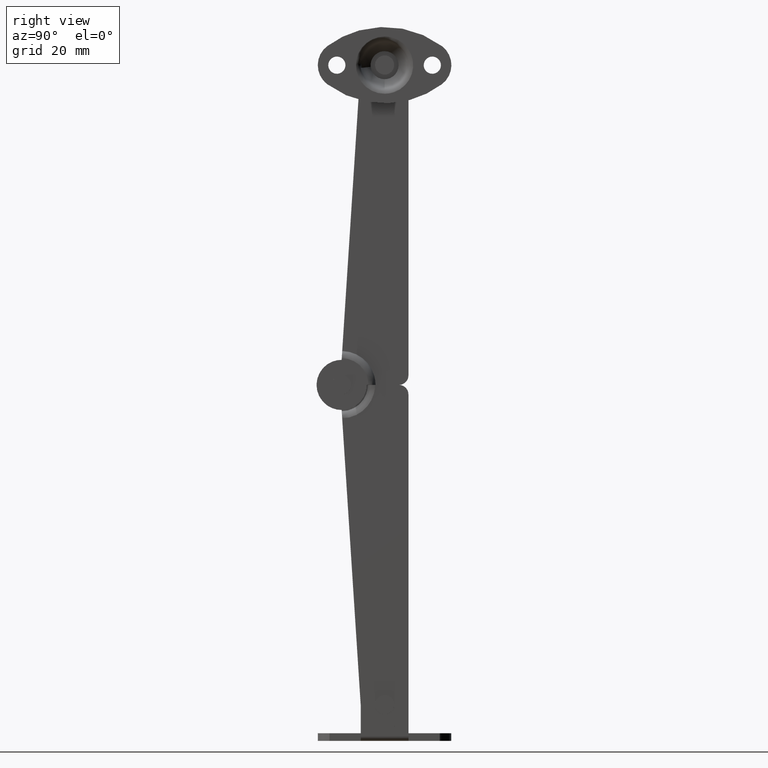
[diagram: clean part render]
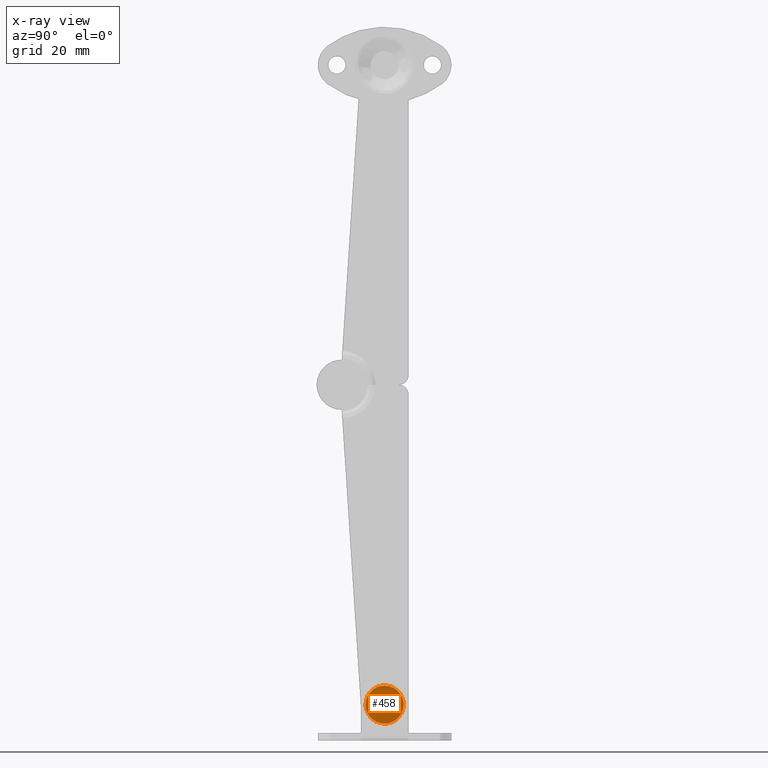
[diagram: x-ray — body ghosted, one internal face saturated and labeled with its STEP entity id]
A machine part, right view, then the same camera in x-ray: the body is ghosted and one INTERNAL B-rep face — a face not visible from any outside direction — is saturated and labeled: STEP entity #458.
In plain terms, the highlighted face is a freeform B-spline surface patch.
Its self-contained STEP definition (entity closure, byte-faithful):
#70=CARTESIAN_POINT('',(3.599991000006590,0.763555934445618,0.645741764109939));
#71=VERTEX_POINT('',#70);
#72=CARTESIAN_POINT('',(3.599991000000080,0.0,1.0));
#73=VERTEX_POINT('',#72);
#74=CARTESIAN_POINT('',(3.599991000006590,0.763555934445618,0.645741764109939));
#75=CARTESIAN_POINT('',(3.599991000005688,0.658586004059867,0.770410969948342));
#76=CARTESIAN_POINT('',(3.599991000003634,0.416233844426429,0.944200817206888));
#77=CARTESIAN_POINT('',(3.599991000001157,0.126715662868271,1.000114263729028));
#78=CARTESIAN_POINT('',(3.599991000000080,0.0,1.0));
#79=B_SPLINE_CURVE_WITH_KNOTS('',3,(#74,#75,#76,#77,#78),.UNSPECIFIED.,.F.,.U.,(4,1,4),(0.000000116544619,0.488706179782846,0.868828716494332),.UNSPECIFIED.);
#80=EDGE_CURVE('',#71,#73,#79,.T.);
#82=CARTESIAN_POINT('',(3.599991000000080,-0.999999999999983,-0.000000184446377));
#83=VERTEX_POINT('',#82);
#84=CARTESIAN_POINT('',(3.599991000000080,0.0,1.0));
#85=CARTESIAN_POINT('',(3.599991000000077,-0.163694700329356,1.000313599856675));
#86=CARTESIAN_POINT('',(3.599991000000080,-0.408789861768367,0.938399793159588));
#87=CARTESIAN_POINT('',(3.599991000000080,-0.718842733107815,0.719983333248641));
#88=CARTESIAN_POINT('',(3.599991000000068,-0.937445916014810,0.425287071422506));
#89=CARTESIAN_POINT('',(3.599991000000090,-1.000206682629834,0.147294423148819));
#90=CARTESIAN_POINT('',(3.599991000000080,-0.999999999999983,-0.000000184446377));
#91=B_SPLINE_CURVE_WITH_KNOTS('',3,(#84,#85,#86,#87,#88,#89,#90),.UNSPECIFIED.,.F.,.U.,(4,1,1,1,4),(0.000000231877339,0.490926261532044,0.736389906305647,1.129122870276101,1.570953987262256),.UNSPECIFIED.);
#92=EDGE_CURVE('',#73,#83,#91,.T.);
#94=CARTESIAN_POINT('',(3.599991000000080,0.0,-1.0));
#95=VERTEX_POINT('',#94);
#96=CARTESIAN_POINT('',(3.599991000000080,-0.999999999999983,-0.000000184446377));
#97=CARTESIAN_POINT('',(3.599991000000082,-1.000316032661211,-0.163702852029814));
#98=CARTESIAN_POINT('',(3.599991000000076,-0.938396942270719,-0.408781568956172));
#99=CARTESIAN_POINT('',(3.599991000000085,-0.719988077439083,-0.718856223689221));
#100=CARTESIAN_POINT('',(3.599991000000072,-0.425278492266410,-0.937416974120700));
#101=CARTESIAN_POINT('',(3.599991000000084,-0.147300968493758,-1.000225834362971));
#102=CARTESIAN_POINT('',(3.599991000000080,0.0,-1.0));
#103=B_SPLINE_CURVE_WITH_KNOTS('',3,(#96,#97,#98,#99,#100,#101,#102),.UNSPECIFIED.,.F.,.U.,(4,1,1,1,4),(0.000000232850168,0.490926197147427,0.736389808752705,1.129122720947109,1.570953779327930),.UNSPECIFIED.);
#104=EDGE_CURVE('',#83,#95,#103,.T.);
#106=CARTESIAN_POINT('',(3.599990999988204,0.688354445081336,-0.725374431476565));
#107=VERTEX_POINT('',#106);
#108=CARTESIAN_POINT('',(3.599991000000080,0.0,-1.0));
#109=CARTESIAN_POINT('',(3.599990999998170,0.110729282859993,-1.000067401438340));
#110=CARTESIAN_POINT('',(3.599990999993808,0.363753124343152,-0.957527356517211));
#111=CARTESIAN_POINT('',(3.599990999989981,0.585210362860858,-0.823540914121443));
#112=CARTESIAN_POINT('',(3.599990999988204,0.688354445081336,-0.725374431476565));
#113=B_SPLINE_CURVE_WITH_KNOTS('',3,(#108,#109,#110,#111,#112),.UNSPECIFIED.,.F.,.U.,(4,1,4),(0.000000071944030,0.332189393591786,0.759289230254971),.UNSPECIFIED.);
#114=EDGE_CURVE('',#95,#107,#113,.T.);
#189=CARTESIAN_POINT('',(3.599991000000080,0.999999999999983,0.000000184446376));
#190=VERTEX_POINT('',#189);
#191=CARTESIAN_POINT('',(3.599991000000080,0.999999999999983,0.000000184446376));
#192=CARTESIAN_POINT('',(3.599991000001405,1.000155606397559,0.131649386283759));
#193=CARTESIAN_POINT('',(3.599991000003768,0.953070490989916,0.365504708728091));
#194=CARTESIAN_POINT('',(3.599991000005800,0.829701791118341,0.567599372151244));
#195=CARTESIAN_POINT('',(3.599991000006590,0.763555934445618,0.645741764109939));
#196=B_SPLINE_CURVE_WITH_KNOTS('',3,(#191,#192,#193,#194,#195),.UNSPECIFIED.,.F.,.U.,(4,1,4),(0.000000097202054,0.394893671239929,0.702050397115971),.UNSPECIFIED.);
#197=EDGE_CURVE('',#190,#71,#196,.T.);
#219=CARTESIAN_POINT('',(3.599990999988204,0.688354445081336,-0.725374431476565));
#220=CARTESIAN_POINT('',(3.599990999989915,0.798967759780574,-0.620783607895359));
#221=CARTESIAN_POINT('',(3.599990999993719,0.951380393231488,-0.388833570579270));
#222=CARTESIAN_POINT('',(3.599990999998141,1.000097114595823,-0.118362747365108));
#223=CARTESIAN_POINT('',(3.599991000000080,0.999999999999983,0.000000184446376));
#224=B_SPLINE_CURVE_WITH_KNOTS('',3,(#219,#220,#221,#222,#223),.UNSPECIFIED.,.F.,.U.,(4,1,4),(0.000000100791364,0.456561343546475,0.811665313410157),.UNSPECIFIED.);
#225=EDGE_CURVE('',#107,#190,#224,.T.);
#256=CARTESIAN_POINT('',(3.599991000085479,-3.054222932710383,2.582968692540980));
#257=VERTEX_POINT('',#256);
#258=CARTESIAN_POINT('',(3.599991000000100,0.0,4.0));
#259=VERTEX_POINT('',#258);
#260=CARTESIAN_POINT('',(3.599991000085479,-3.054222932710383,2.582968692540980));
#261=CARTESIAN_POINT('',(3.599991000079933,-2.855563559087496,2.817940873970207));
#262=CARTESIAN_POINT('',(3.599991000065796,-2.350543541259000,3.291634827877427));
#263=CARTESIAN_POINT('',(3.599991000037043,-1.321163357586195,3.848179102982816));
#264=CARTESIAN_POINT('',(3.599991000013254,-0.470622891601826,4.000290084161660));
#265=CARTESIAN_POINT('',(3.599991000000100,0.0,4.0));
#266=B_SPLINE_CURVE_WITH_KNOTS('',3,(#260,#261,#262,#263,#264,#265),.UNSPECIFIED.,.F.,.U.,(4,1,1,4),(0.000000066983564,0.923109299960014,2.063406043395096,3.475233265709845),.UNSPECIFIED.);
#267=EDGE_CURVE('',#257,#259,#266,.T.);
#269=CARTESIAN_POINT('',(3.599991000000100,3.999999999999200,-0.000002529784441));
#270=VERTEX_POINT('',#269);
#271=CARTESIAN_POINT('',(3.599991000000100,0.0,4.0));
#272=CARTESIAN_POINT('',(3.599991000000099,0.327235140516279,4.000045028200201));
#273=CARTESIAN_POINT('',(3.599991000000111,1.079956985047431,3.907265570003938));
#274=CARTESIAN_POINT('',(3.599991000000087,2.024261659720734,3.502566651741792));
#275=CARTESIAN_POINT('',(3.599991000000119,2.750004748339564,2.935853656406186));
#276=CARTESIAN_POINT('',(3.599991000000089,3.250430032365230,2.369949876097740));
#277=CARTESIAN_POINT('',(3.599991000000109,3.639281312376408,1.721249657613600));
#278=CARTESIAN_POINT('',(3.599991000000093,3.927299854300056,0.916261389082488));
#279=CARTESIAN_POINT('',(3.599991000000116,4.000077111275193,0.327244740224918));
#280=CARTESIAN_POINT('',(3.599991000000100,3.999999999999200,-0.000002529784441));
#281=B_SPLINE_CURVE_WITH_KNOTS('',3,(#271,#272,#273,#274,#275,#276,#277,#278,#279,#280),.UNSPECIFIED.,.F.,.U.,(4,1,1,1,1,1,1,4),(0.000000057371697,0.981751341382896,2.258094293956176,3.043496199868863,3.730719380975293,4.516145604218766,5.301590646167510,6.283344403202250),.UNSPECIFIED.);
#282=EDGE_CURVE('',#259,#270,#281,.T.);
#284=CARTESIAN_POINT('',(3.599991000000100,0.0,-4.0));
#285=VERTEX_POINT('',#284);
#286=CARTESIAN_POINT('',(3.599991000000100,3.999999999999200,-0.000002529784441));
#287=CARTESIAN_POINT('',(3.599991000000104,4.000027283132240,-0.261794996408387));
#288=CARTESIAN_POINT('',(3.599991000000097,3.945219792121195,-0.818118180267194));
#289=CARTESIAN_POINT('',(3.599991000000100,3.716521670605147,-1.540031216347512));
#290=CARTESIAN_POINT('',(3.599991000000105,3.360723549855307,-2.205634890260217));
#291=CARTESIAN_POINT('',(3.599991000000107,2.935895222352588,-2.750022606996716));
#292=CARTESIAN_POINT('',(3.599991000000098,2.369951614660963,-3.250433970475412));
#293=CARTESIAN_POINT('',(3.599991000000099,1.721251290608575,-3.639277028690743));
#294=CARTESIAN_POINT('',(3.599991000000104,0.916265804967076,-3.927306567300859));
#295=CARTESIAN_POINT('',(3.599991000000096,0.327247825735074,-4.000074498222016));
#296=CARTESIAN_POINT('',(3.599991000000100,0.0,-4.0));
#297=B_SPLINE_CURVE_WITH_KNOTS('',3,(#286,#287,#288,#289,#290,#291,#292,#293,#294,#295,#296),.UNSPECIFIED.,.F.,.U.,(4,1,1,1,1,1,1,1,4),(0.000000060841306,0.785393105733840,1.669017111102702,2.258093272654349,3.043494825526241,3.730717691963451,4.516143553823873,5.301588240496281,6.283341551474435),.UNSPECIFIED.);
#298=EDGE_CURVE('',#270,#285,#297,.T.);
#300=CARTESIAN_POINT('',(3.599990999853934,-2.753417767906647,-2.901497120925834));
#301=VERTEX_POINT('',#300);
#302=CARTESIAN_POINT('',(3.599991000000100,0.0,-4.0));
#303=CARTESIAN_POINT('',(3.599990999978264,-0.411279440226417,-4.000231162333764));
#304=CARTESIAN_POINT('',(3.599990999943014,-1.075441498818872,-3.896582132149384));
#305=CARTESIAN_POINT('',(3.599990999893362,-2.010710193675920,-3.497457129767144));
#306=CARTESIAN_POINT('',(3.599990999867325,-2.501069538624470,-3.141115254658375));
#307=CARTESIAN_POINT('',(3.599990999853934,-2.753417767906647,-2.901497120925834));
#308=B_SPLINE_CURVE_WITH_KNOTS('',3,(#302,#303,#304,#305,#306,#307),.UNSPECIFIED.,.F.,.U.,(4,1,1,4),(0.000000036912283,1.233770129712832,1.992984145373662,3.036943732552182),.UNSPECIFIED.);
#309=EDGE_CURVE('',#285,#301,#308,.T.);
#394=CARTESIAN_POINT('',(3.599991000000100,-3.999999999999200,0.000002529784406));
#395=VERTEX_POINT('',#394);
#396=CARTESIAN_POINT('',(3.599991000000100,-3.999999999999200,0.000002529784406));
#397=CARTESIAN_POINT('',(3.599991000014606,-4.000246229206558,0.438783720199316));
#398=CARTESIAN_POINT('',(3.599991000045532,-3.844391652243121,1.374573921116142));
#399=CARTESIAN_POINT('',(3.599991000072942,-3.375709479430888,2.203548357226206));
#400=CARTESIAN_POINT('',(3.599991000085479,-3.054222932710383,2.582968692540980));
#401=B_SPLINE_CURVE_WITH_KNOTS('',3,(#396,#397,#398,#399,#400),.UNSPECIFIED.,.F.,.U.,(4,1,4),(0.000000040116375,1.316276158141083,2.808032978267825),.UNSPECIFIED.);
#402=EDGE_CURVE('',#395,#257,#401,.T.);
#425=CARTESIAN_POINT('',(3.599990999853934,-2.753417767906647,-2.901497120925834));
#426=CARTESIAN_POINT('',(3.599990999864480,-2.974225009640996,-2.692042731721267));
#427=CARTESIAN_POINT('',(3.599990999886838,-3.345754602552439,-2.248477986575759));
#428=CARTESIAN_POINT('',(3.599990999935374,-3.849978132611172,-1.284679598026349));
#429=CARTESIAN_POINT('',(3.599990999974551,-4.000522479944721,-0.507329752916470));
#430=CARTESIAN_POINT('',(3.599991000000100,-3.999999999999200,0.000002529784406));
#431=B_SPLINE_CURVE_WITH_KNOTS('',3,(#425,#426,#427,#428,#429,#430),.UNSPECIFIED.,.F.,.U.,(4,1,1,4),(0.000000028443240,0.913050582718022,1.724650332723358,3.246401802508816),.UNSPECIFIED.);
#432=EDGE_CURVE('',#301,#395,#431,.T.);
#437=CARTESIAN_POINT('',(3.599991000000100,-4.399599984493568,4.399599984494448));
#438=CARTESIAN_POINT('',(3.599991000000100,-4.399599984493568,-4.399600199071169));
#439=CARTESIAN_POINT('',(3.599991000000100,4.399600199070289,4.399599984494448));
#440=CARTESIAN_POINT('',(3.599991000000100,4.399600199070289,-4.399600199071169));
#441=B_SPLINE_SURFACE_WITH_KNOTS('',1,1,((#437,#439),(#438,#440)),.UNSPECIFIED.,.F.,.F.,.U.,(2,2),(2,2),(0.0,8.799200183565617),(0.0,8.799200183563857),.UNSPECIFIED.);
#442=ORIENTED_EDGE('',*,*,#267,.F.);
#443=ORIENTED_EDGE('',*,*,#402,.F.);
#444=ORIENTED_EDGE('',*,*,#432,.F.);
#445=ORIENTED_EDGE('',*,*,#309,.F.);
#446=ORIENTED_EDGE('',*,*,#298,.F.);
#447=ORIENTED_EDGE('',*,*,#282,.F.);
#448=EDGE_LOOP('',(#442,#443,#444,#445,#446,#447));
#449=FACE_OUTER_BOUND('',#448,.T.);
#450=ORIENTED_EDGE('',*,*,#92,.F.);
#451=ORIENTED_EDGE('',*,*,#80,.F.);
#452=ORIENTED_EDGE('',*,*,#197,.F.);
#453=ORIENTED_EDGE('',*,*,#225,.F.);
#454=ORIENTED_EDGE('',*,*,#114,.F.);
#455=ORIENTED_EDGE('',*,*,#104,.F.);
#456=EDGE_LOOP('',(#450,#451,#452,#453,#454,#455));
#457=FACE_BOUND('',#456,.T.);
#458=ADVANCED_FACE('',(#449,#457),#441,.T.);